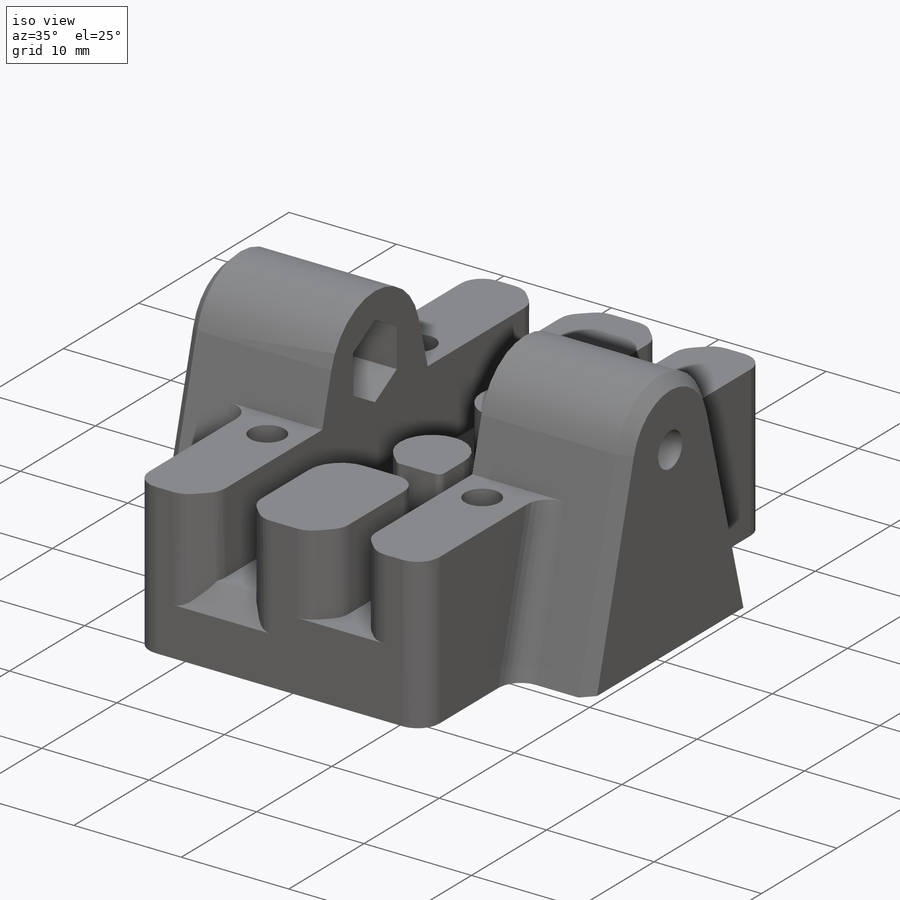
[diagram: iso view]
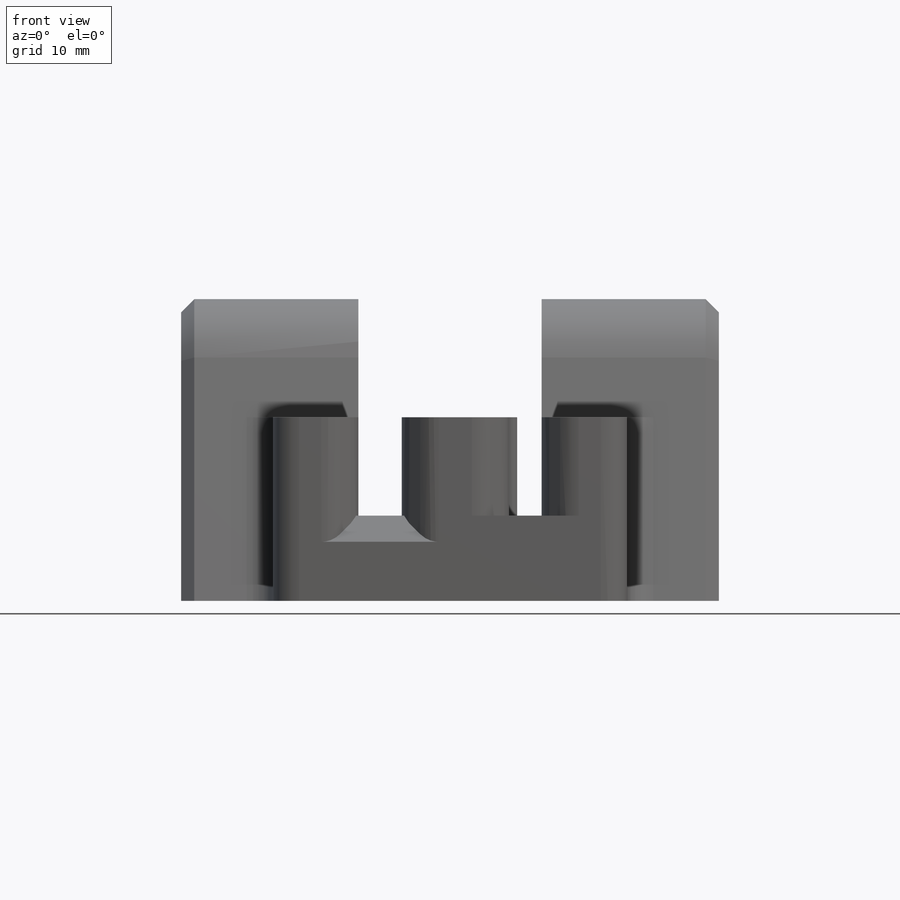
[diagram: front view]
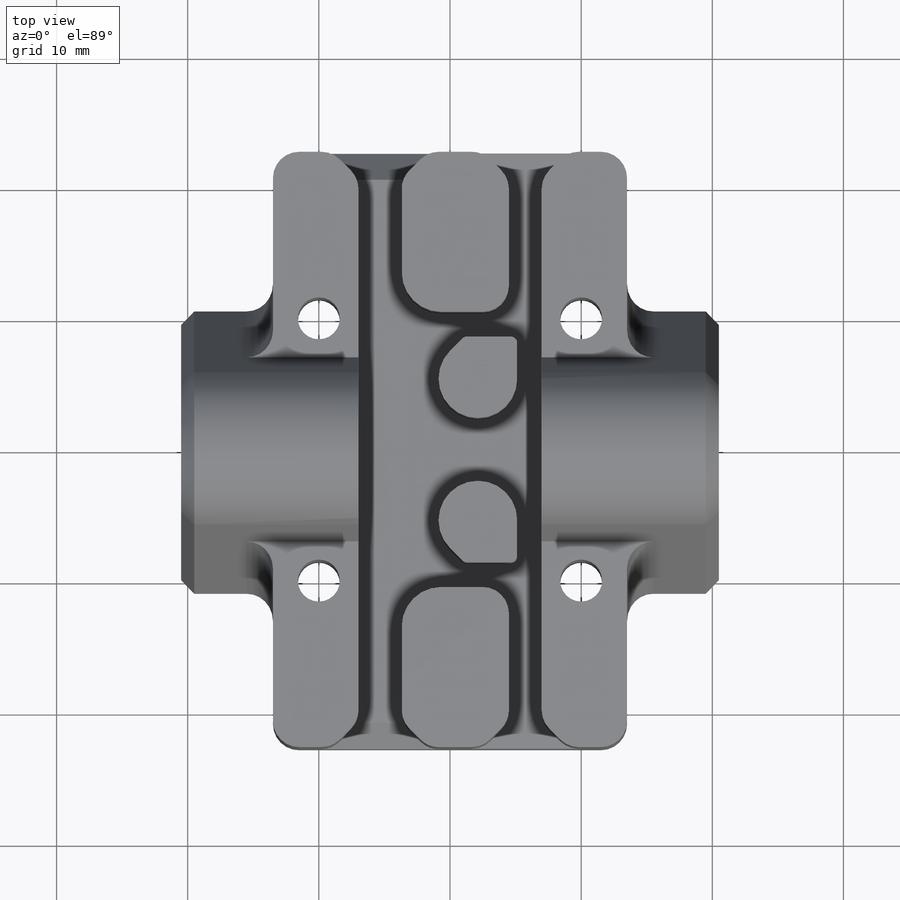
[diagram: top view]
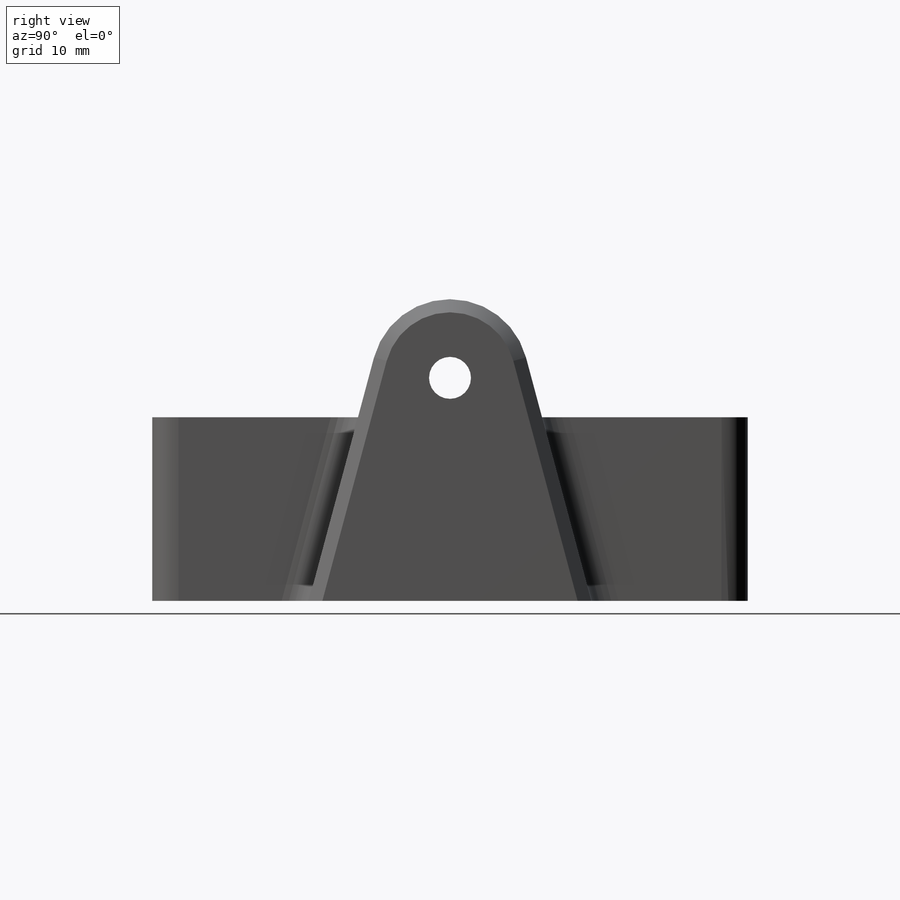
[diagram: right view]
SOLIDWORKS PART (.sldprt)
format: sldprt  version: not decoded by parser v0  size: 648,192 bytes
history: native  units: mm
features: sketch x15, extrude x6, fillet x5, cut_extrude x4, chamfer x3, material x1 (+12 scaffold rows collapsed)
feature tree (46):
  scaffold x12  (default folders/planes/origin — collapsed)
  material  "Material <not specified>"
  sketch  "Sketch1"  dims[D3=1.5mm D1=27.0mm D2=45.4mm]
  sketch  "Sketch3"  dims[D1=10.0mm D2=4.0mm]
  sketch  "Sketch27"  dims[D1=0.0mm D2=0.0mm D3=0.0mm D4=0.0mm D5=0.0mm D6=0.0mm D7=0.0mm D8=0.0mm D9=0.0mm D10=0.0mm]
  sketch  "Sketch29"
  extrude  "Boss-Extrude1"  Depth=6.5mm
  fillet  "Fillet1"  Radius=2mm
  sketch  "Sketch30"  dims[D1=0.0mm]
  extrude  "Boss-Extrude2"  Depth=7.5mm
  fillet  "Fillet2"  Radius=3mm
  chamfer  "Chamfer1"  Distance=2mm Angle=45deg
  fillet  "Fillet3"  Radius=2mm
  sketch  "Sketch31"  dims[D2=3.2mm D1=20.0mm]
  cut_extrude  "Cut-Extrude1"  [1 undecoded]
  sketch  "Sketch32"  dims[c1.D3=12.0mm c1.D1=17.0mm c1.D2=~18.487467mm c2.D2=30.0deg]
  sketch  "Sketch33"  dims[D1=0.0mm]
  extrude  "Boss-Extrude3"  Depth=21mm
  sketch  "Sketch34"  dims[D1=0.0mm]
  extrude  "Boss-Extrude4"  Depth=21mm
  chamfer  "Chamfer2"  Distance=1.5mm Angle=45deg
  sketch  "Sketch35"  dims[D1=3.2mm]
  cut_extrude  "Cut-Extrude2"  [1 undecoded]
  sketch  "Sketch36"  dims[D1=5.8mm]
  cut_extrude  "Cut-Extrude3"  Depth=3mm
  chamfer  "Chamfer3"  Distance=2mm Angle=45deg
  fillet  "Fillet5"  Radius=2mm
  sketch  "Sketch37"  dims[D1=0.0mm]
  extrude  "Boss-Extrude5"  [1 undecoded]
  sketch  "Sketch38"  dims[D1=0.0mm]
  extrude  "Boss-Extrude6"  [1 undecoded]
  fillet  "Fillet6"  Radius=2mm
  sketch  "Sketch39"  dims[D1=6.0mm]
  sketch  "Sketch40"  dims[D1=0.2mm D2=0.2mm]
  cut_extrude  "Cut-Extrude4"  [1 undecoded]
decode coverage: 27 of 33 modeling features carry decoded parameters
note: ~ marks probable driven/reference dimensions
note: 5 parameter values undecoded
summary: no parameter record found for 5 features
note: suppression state not decoded; provenance and decode notes live in map.json
